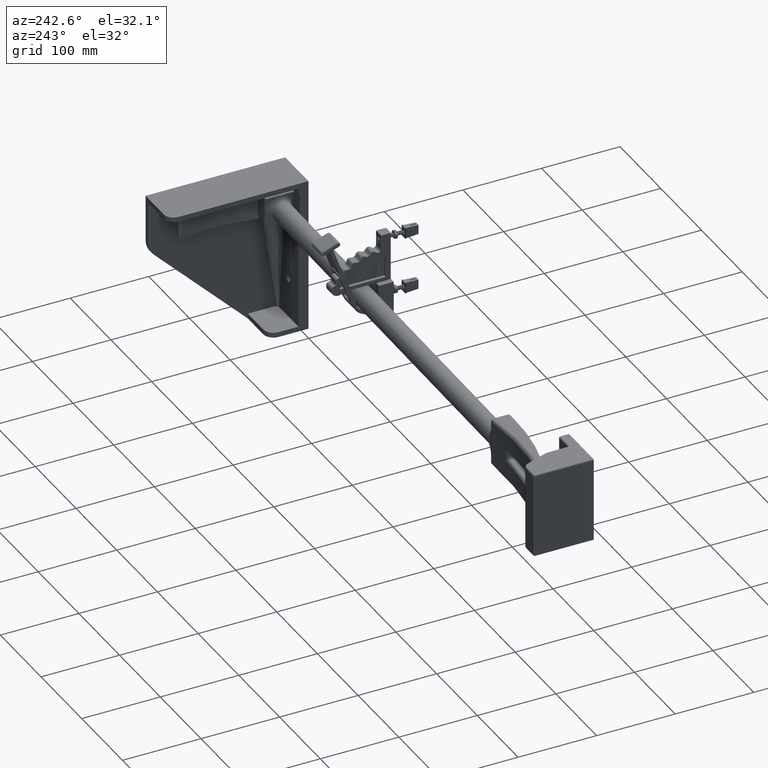
[diagram: clean part render]
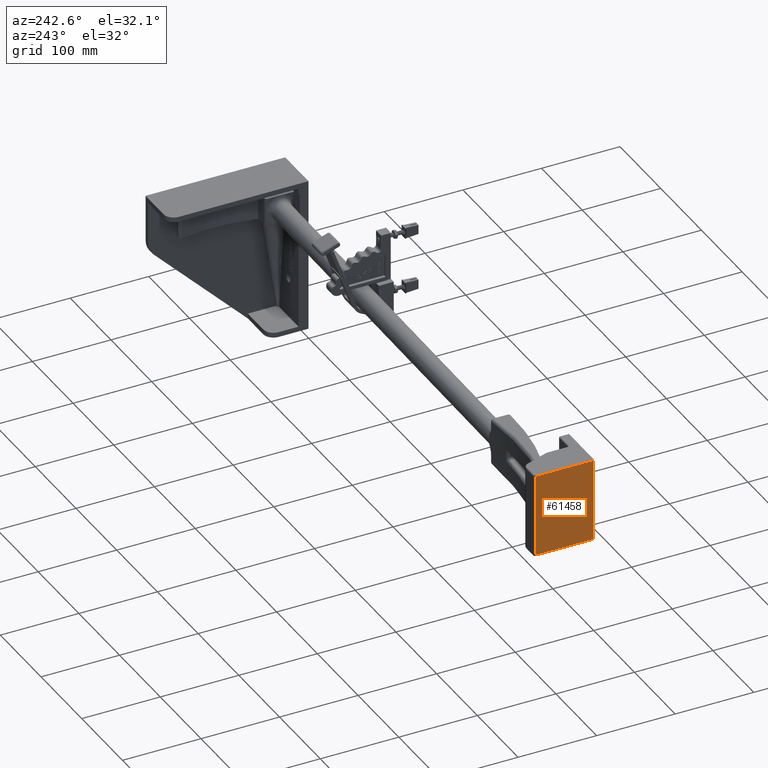
[diagram: same view with one face highlighted and labeled with its STEP entity id]
A machine part, auxiliary view. The second image highlights one B-rep face of the part: STEP entity #61458.
In plain terms, the highlighted planar face has unit normal (1, 0, 0).
Its self-contained STEP definition (entity closure, byte-faithful):
#2710 = ORIENTED_EDGE ( 'NONE', *, *, #3621, .T. ) ;
#2711 = ORIENTED_EDGE ( 'NONE', *, *, #3620, .T. ) ;
#2712 = ORIENTED_EDGE ( 'NONE', *, *, #3616, .T. ) ;
#2713 = ORIENTED_EDGE ( 'NONE', *, *, #3622, .T. ) ;
#3616 = EDGE_CURVE ( 'NONE', #33949, #33951, #17066, .T. ) ;
#3620 = EDGE_CURVE ( 'NONE', #33947, #33949, #17069, .T. ) ;
#3621 = EDGE_CURVE ( 'NONE', #33945, #33947, #17075, .T. ) ;
#3622 = EDGE_CURVE ( 'NONE', #33951, #33945, #17077, .T. ) ;
#14123 = EDGE_LOOP ( 'NONE', ( #2710, #2711, #2712, #2713 ) ) ;
#17053 = VECTOR ( 'NONE', #25780, 39.37007874015748100 ) ;
#17066 = LINE ( 'NONE', #25779, #17053 ) ;
#17069 = LINE ( 'NONE', #25781, #17073 ) ;
#17073 = VECTOR ( 'NONE', #25791, 39.37007874015748100 ) ;
#17075 = LINE ( 'NONE', #25792, #17076 ) ;
#17076 = VECTOR ( 'NONE', #25793, 39.37007874015748100 ) ;
#17077 = LINE ( 'NONE', #25794, #17078 ) ;
#17078 = VECTOR ( 'NONE', #25795, 39.37007874015748100 ) ;
#25779 = CARTESIAN_POINT ( 'NONE',  ( 7.824477552464662100E-016, 3.000000000000008000, 2.062500000000000000 ) ) ;
#25780 = DIRECTION ( 'NONE',  ( 6.331496884939525300E-018, -1.000000000000000000, -2.258626754437444700E-017 ) ) ;
#25781 = CARTESIAN_POINT ( 'NONE',  ( 8.071296024654501900E-016, 2.937500000000007500, 2.125000000000000000 ) ) ;
#25791 = DIRECTION ( 'NONE',  ( 3.885780586188047400E-016, 2.258626754437453300E-017, 1.000000000000000000 ) ) ;
#25792 = CARTESIAN_POINT ( 'NONE',  ( -8.204367365561037400E-016, 3.000000000000008000, -2.062500000000000000 ) ) ;
#25793 = DIRECTION ( 'NONE',  ( -6.331496884939525300E-018, 1.000000000000000000, 2.258626754437444700E-017 ) ) ;
#25794 = CARTESIAN_POINT ( 'NONE',  ( 8.257283745649600800E-016, 4.799581853179588300E-017, 2.125000000000000000 ) ) ;
#25795 = DIRECTION ( 'NONE',  ( -3.885780586188047400E-016, -2.258626754437453300E-017, -1.000000000000000000 ) ) ;
#31067 = AXIS2_PLACEMENT_3D ( 'NONE', #55580, #55592, #55593 ) ;
#33409 = CARTESIAN_POINT ( 'NONE',  ( -8.014422459012851700E-016, -4.658417681027249300E-017, -2.062500000000000000 ) ) ;
#33410 = CARTESIAN_POINT ( 'NONE',  ( -8.200410180007948600E-016, 2.937500000000007500, -2.062500000000000000 ) ) ;
#33411 = CARTESIAN_POINT ( 'NONE',  ( 7.828434738017749000E-016, 2.937500000000007500, 2.062500000000000000 ) ) ;
#33412 = CARTESIAN_POINT ( 'NONE',  ( 8.014422459012846800E-016, 4.658417681027246800E-017, 2.062500000000000000 ) ) ;
#33945 = VERTEX_POINT ( 'NONE', #33409 ) ;
#33947 = VERTEX_POINT ( 'NONE', #33410 ) ;
#33949 = VERTEX_POINT ( 'NONE', #33411 ) ;
#33951 = VERTEX_POINT ( 'NONE', #33412 ) ;
#47288 = FACE_OUTER_BOUND ( 'NONE', #14123, .T. ) ;
#55580 = CARTESIAN_POINT ( 'NONE',  ( 8.067338839101418100E-016, 3.000000000000008000, 2.125000000000000000 ) ) ;
#55587 = PLANE ( 'NONE',  #31067 ) ;
#55592 = DIRECTION ( 'NONE',  ( -1.000000000000000000, -6.331496884939517600E-018, -3.885780586188048400E-016 ) ) ;
#55593 = DIRECTION ( 'NONE',  ( 6.331496884939526000E-018, -1.000000000000000000, -2.258626754437444700E-017 ) ) ;
#61458 = ADVANCED_FACE ( 'NONE', ( #47288 ), #55587, .F. ) ;